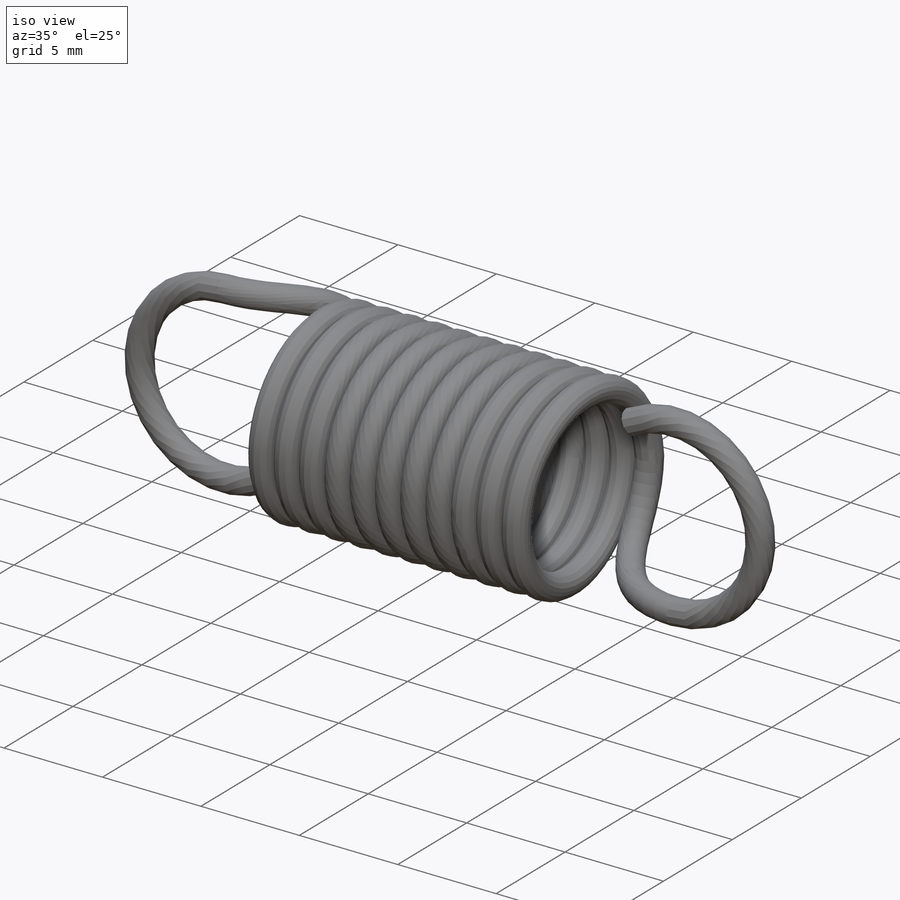
[diagram: iso view]
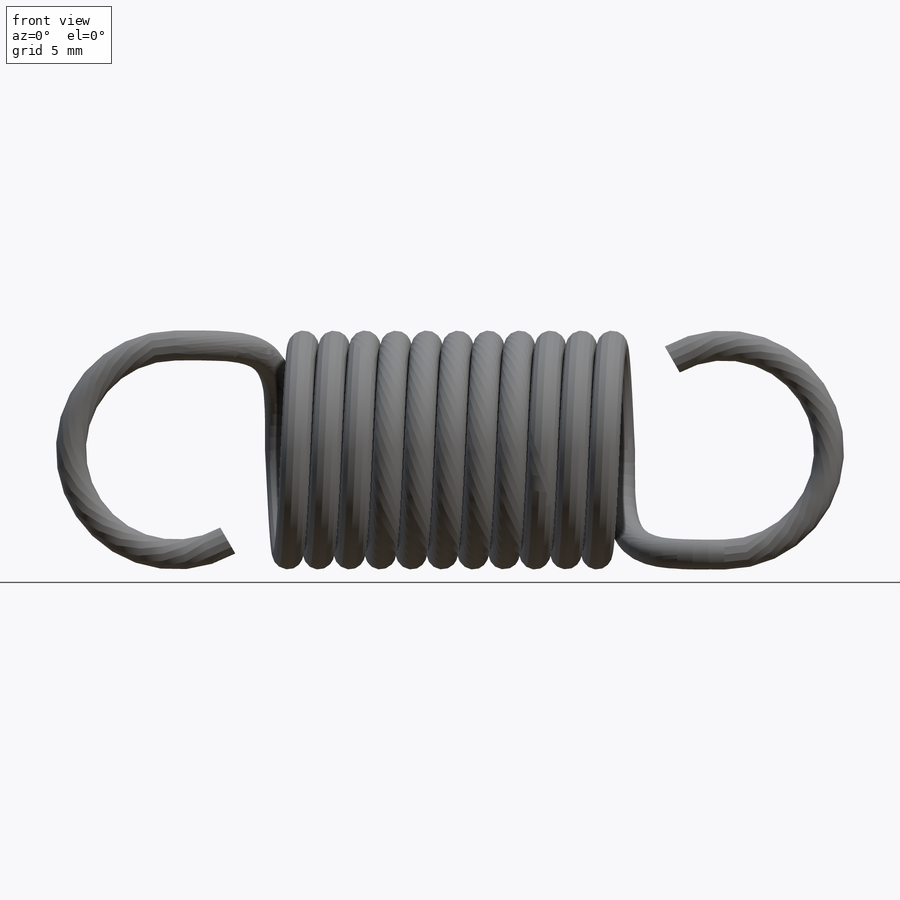
[diagram: front view]
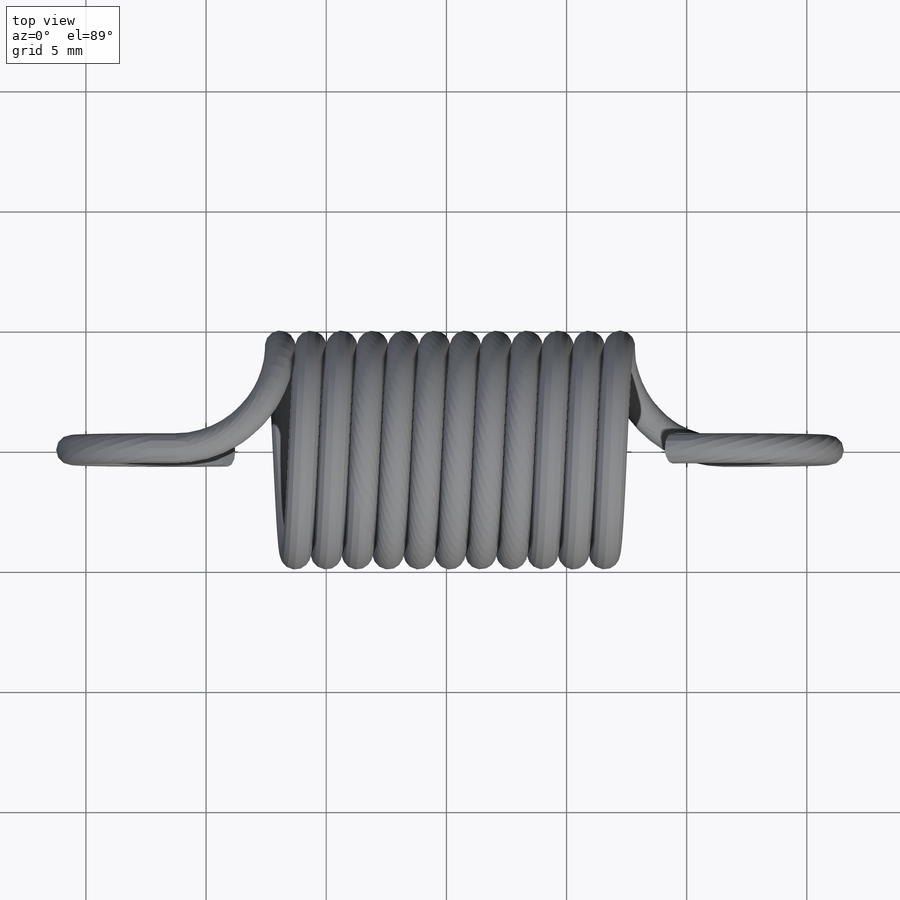
[diagram: top view]
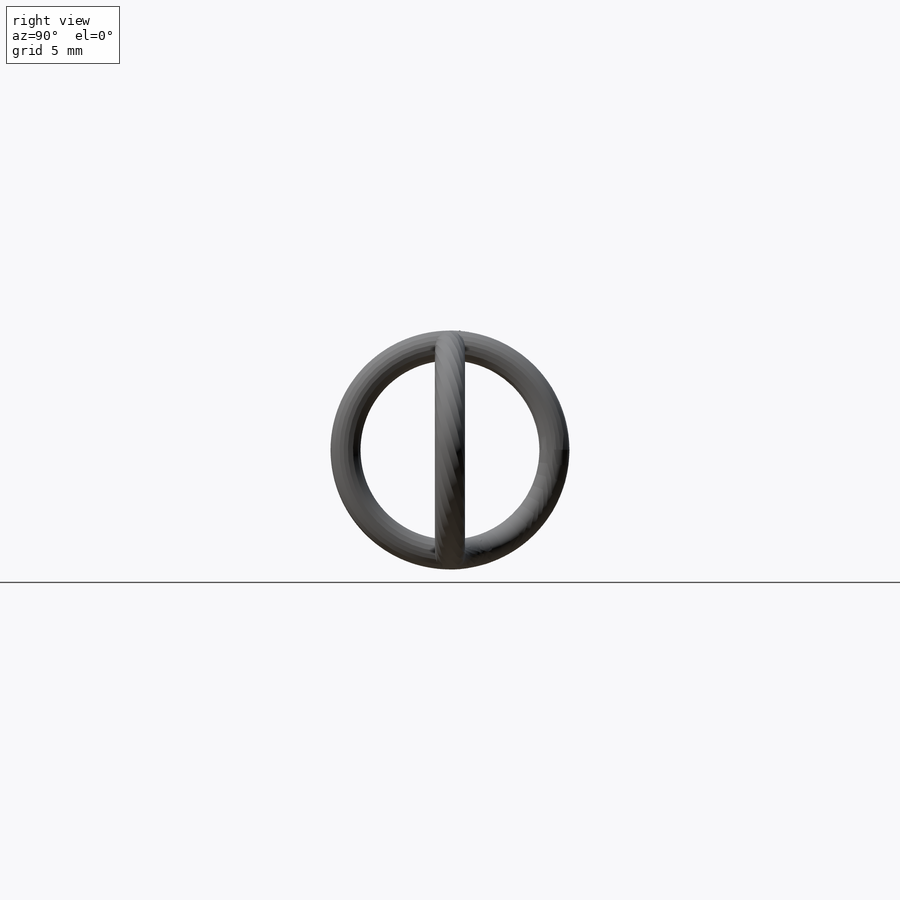
[diagram: right view]
SOLIDWORKS PART (.sldprt)
format: sldprt  version: not decoded by parser v0  size: 3,536,384 bytes
history: native  units: mm
features: sketch x8, helix x3, material x1, plane x1, sweep x1 + 1 further entry (+8 scaffold rows collapsed)
feature tree (23):
  scaffold x8  (default folders/planes/origin — collapsed)
  material  "X5CrNi18-10"
  plane  "Front (1)"
  "Tabellen"  Ebene=30.2mm
  sketch  "Start_Loop"  dims[O.D.=9.95mm D2=~35.408644mm D3=~2216.896406mm]
  sketch  "Top_Start"
  sketch  "Right_Start"
  helix  "Helix_Start_Plane"  [1 undecoded]
  sketch  "Helix_Circle"
  helix  "Helix"  Pitch=14.15mm Helix_Height=14.15mm Helix_Pitch=1.286364mm Helix_Revolutions=11
  helix  "Helix_End_Plane"  [1 undecoded]
  sketch  "Top_End"
  sketch  "Right_End"  dims[End_Transition=0.0]
  sketch  "End_Loop"  dims[D1=~2216.665622mm]
  sketch  "Section"  dims[D1=~4.340606mm]
  sweep  "Gutekunst Zugfeder"
decode coverage: 5 of 12 modeling features carry decoded parameters; 1 rows unclassified (native names shown)
note: ~ marks probable driven/reference dimensions
note: 2 parameter values undecoded
note: suppression state not decoded; provenance and decode notes live in map.json
